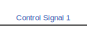
[diagram: root canvas - part 1/5, top left region]
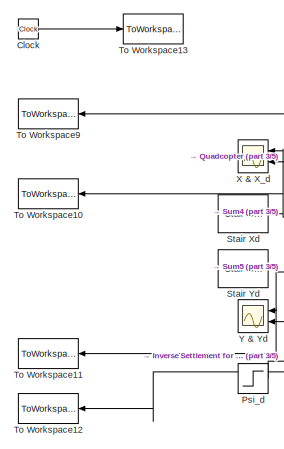
[diagram: root canvas - part 2/5, top left region]
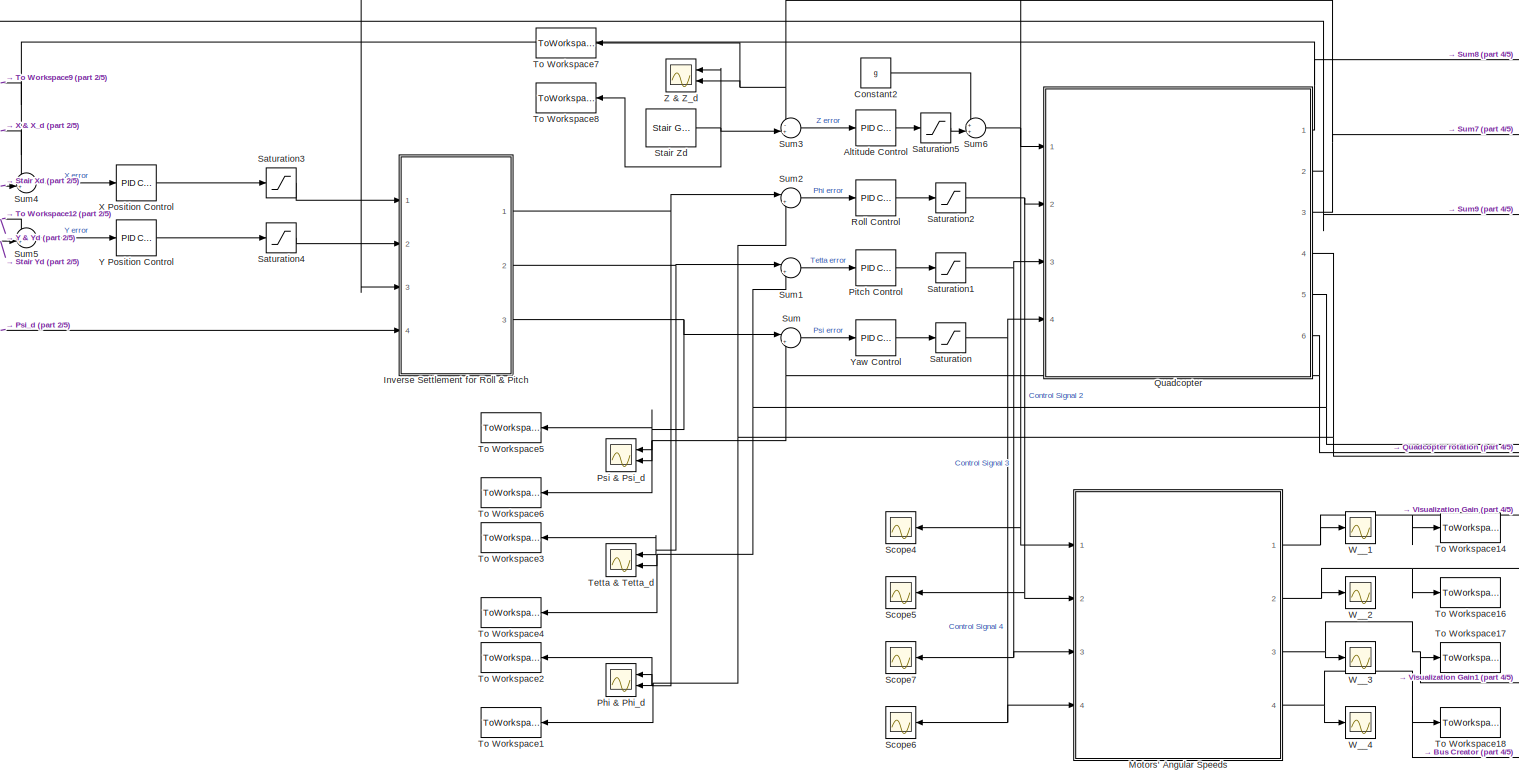
[diagram: root canvas - part 3/5, central region]
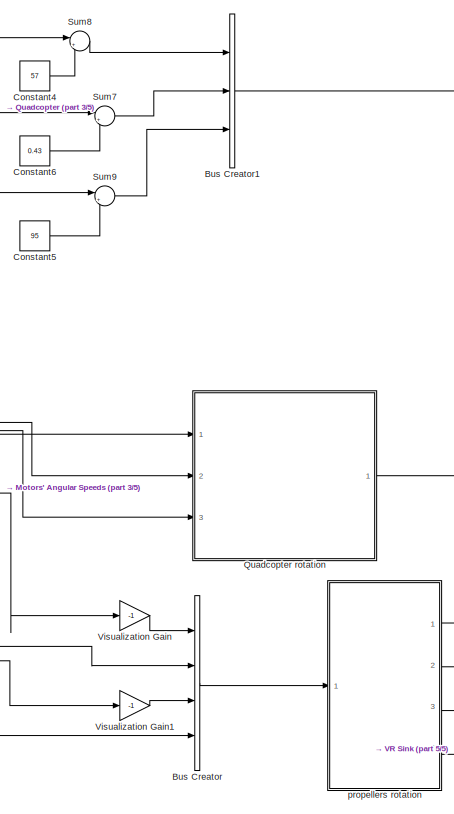
[diagram: root canvas - part 4/5, middle right region]
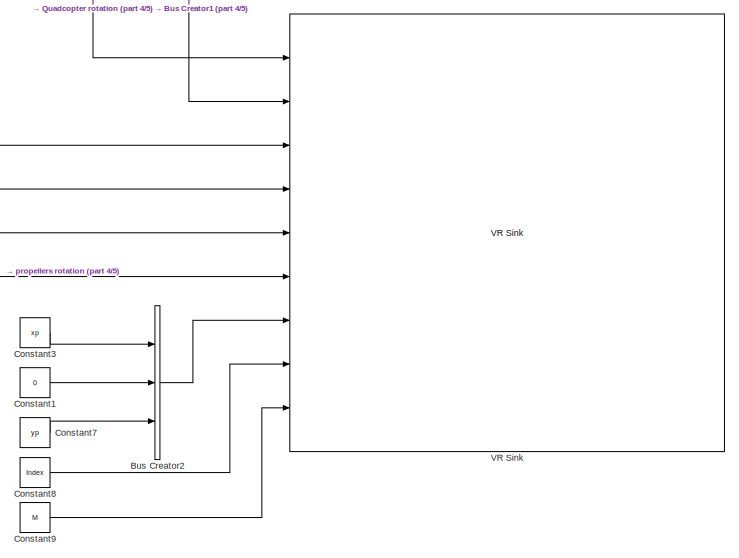
[diagram: root canvas - part 5/5, bottom right region]
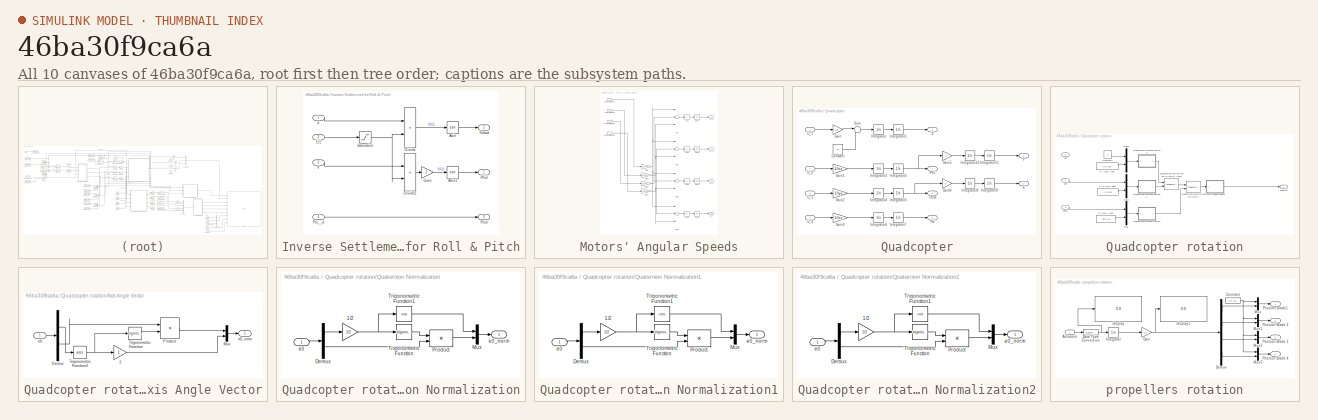
[diagram: thumbnail index - all 10 canvases of the model, root first then tree order]
MODEL slx_46ba30f9ca6a
KIND model
CONFIG AbsTol = auto
CONFIG EnableMultiTasking = off
CONFIG FixedStep = auto
CONFIG MaxStep = auto
CONFIG MinStep = auto
CONFIG RelTol = 1e-3
CONFIG SampleTimeConstraint = Unconstrained
CONFIG Solver = ode15s
CONFIG SolverName = ode15s
CONFIG StartTime = 0.0
CONFIG StopTime = Final_Time_1
BLOCK [Reference] Altitude Control   REF=simulink/Continuous/PID Controller
  Ports = [1, 1]
  SourceBlock = simulink/Continuous/PID Controller
  SourceProductBaseCode = SL
  SourceProductName = Simulink
  SourceType = PID 1dof
BLOCK [BusCreator] Bus Creator
  DisplayOption = bar
  InheritFromInputs = on
  Inputs = 4
  Ports = [4, 1]
BLOCK [BusCreator] Bus Creator1
  DisplayOption = bar
  InheritFromInputs = on
  Inputs = 3
  Ports = [3, 1]
BLOCK [BusCreator] Bus Creator2
  DisplayOption = bar
  InheritFromInputs = on
  Inputs = 3
  Ports = [3, 1]
BLOCK [Clock] Clock
BLOCK [Constant] Constant1
  Value = 0
BLOCK [Constant] Constant2
  Value = g
BLOCK [Constant] Constant3
  Value = xp
BLOCK [Constant] Constant4
  Value = 57
BLOCK [Constant] Constant5
  Value = 95
BLOCK [Constant] Constant6
  Value = 0.43
BLOCK [Constant] Constant7
  Value = yp
BLOCK [Constant] Constant8
  Value = Index
  VectorParams1D = off
BLOCK [Constant] Constant9
  Value = M
BLOCK [SubSystem] Inverse Settlement for Roll & Pitch
  Ports = [4, 3]
  RequestExecContextInheritance = off
BLOCK [Trigonometry] Inverse Settlement for Roll & Pitch/Asin
  Operator = asin
  Ports = [1, 1]
BLOCK [Trigonometry] Inverse Settlement for Roll & Pitch/Asin1
  Operator = asin
  Ports = [1, 1]
BLOCK [Product] Inverse Settlement for Roll & Pitch/Divide
  InputSameDT = off
  Inputs = */
  OutDataTypeStr = Inherit: Inherit via internal rule
  Ports = [2, 1]
  RndMeth = Floor
  SaturateOnIntegerOverflow = off
BLOCK [Product] Inverse Settlement for Roll & Pitch/Divide1
  InputSameDT = off
  Inputs = */
  OutDataTypeStr = Inherit: Inherit via internal rule
  Ports = [2, 1]
  RndMeth = Floor
  SaturateOnIntegerOverflow = off
BLOCK [Gain] Inverse Settlement for Roll & Pitch/Gain
  Gain = -1
  OutDataTypeStr = Inherit: Inherit via internal rule
  ParamDataTypeStr = Inherit: Inherit via internal rule
  SaturateOnIntegerOverflow = off
BLOCK [Outport] Inverse Settlement for Roll & Pitch/Phid 
  IconDisplay = Port number
BLOCK [Inport] Inverse Settlement for Roll & Pitch/Psi__d
  IconDisplay = Port number
  Port = 4
BLOCK [Outport] Inverse Settlement for Roll & Pitch/Psid 
  IconDisplay = Port number
  Port = 3
BLOCK [Saturate] Inverse Settlement for Roll & Pitch/Saturation
  InputPortMap = u0
  LowerLimit = 0.01
  OutMax = [u1_max]
  OutMin = [0.01]
  Ports = [1, 1]
  UpperLimit = u1_max
BLOCK [Outport] Inverse Settlement for Roll & Pitch/Tettad
  IconDisplay = Port number
  Port = 2
BLOCK [Inport] Inverse Settlement for Roll & Pitch/U1
  IconDisplay = Port number
  Port = 3
BLOCK [Inport] Inverse Settlement for Roll & Pitch/X
  IconDisplay = Port number
BLOCK [Inport] Inverse Settlement for Roll & Pitch/Y
  IconDisplay = Port number
  Port = 2
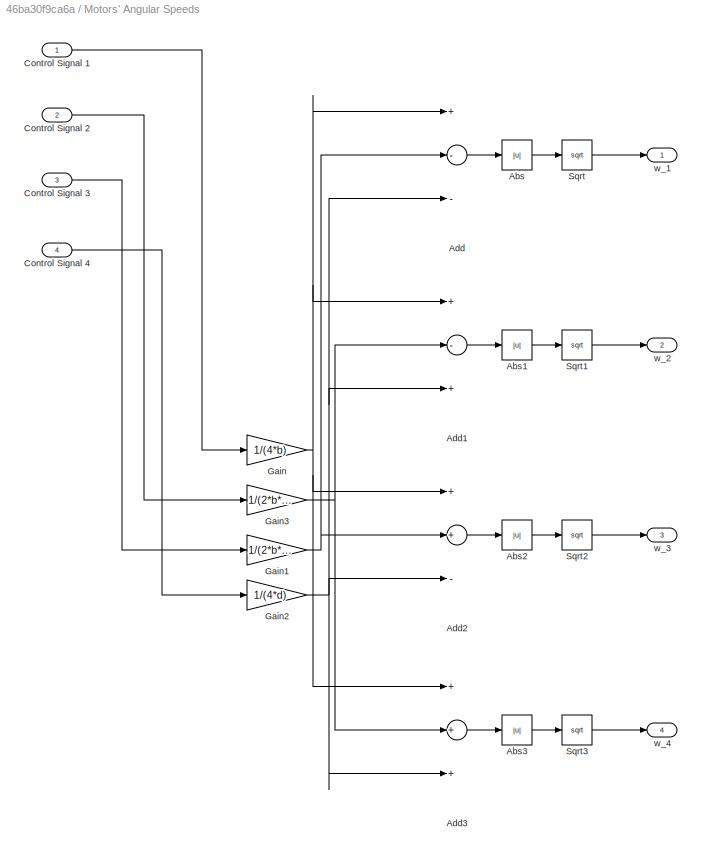
BLOCK [SubSystem] Motors' Angular Speeds
  Ports = [4, 4]
  RequestExecContextInheritance = off
BLOCK [Abs] Motors' Angular Speeds/Abs
  SaturateOnIntegerOverflow = off
BLOCK [Abs] Motors' Angular Speeds/Abs1
  SaturateOnIntegerOverflow = off
BLOCK [Abs] Motors' Angular Speeds/Abs2
  SaturateOnIntegerOverflow = off
BLOCK [Abs] Motors' Angular Speeds/Abs3
  SaturateOnIntegerOverflow = off
BLOCK [Sum] Motors' Angular Speeds/Add
  InputSameDT = off
  Inputs = +--
  OutDataTypeStr = Inherit: Inherit via internal rule
  Ports = [3, 1]
  SaturateOnIntegerOverflow = off
BLOCK [Sum] Motors' Angular Speeds/Add1
  InputSameDT = off
  Inputs = +-+
  OutDataTypeStr = Inherit: Inherit via internal rule
  Ports = [3, 1]
  SaturateOnIntegerOverflow = off
BLOCK [Sum] Motors' Angular Speeds/Add2
  InputSameDT = off
  Inputs = ++-
  OutDataTypeStr = Inherit: Inherit via internal rule
  Ports = [3, 1]
  SaturateOnIntegerOverflow = off
BLOCK [Sum] Motors' Angular Speeds/Add3
  InputSameDT = off
  Inputs = +++
  OutDataTypeStr = Inherit: Inherit via internal rule
  Ports = [3, 1]
  SaturateOnIntegerOverflow = off
BLOCK [Inport] Motors' Angular Speeds/Control Signal 1
  IconDisplay = Port number
BLOCK [Inport] Motors' Angular Speeds/Control Signal 2
  IconDisplay = Port number
  Port = 2
BLOCK [Inport] Motors' Angular Speeds/Control Signal 3
  IconDisplay = Port number
  Port = 3
BLOCK [Inport] Motors' Angular Speeds/Control Signal 4
  IconDisplay = Port number
  Port = 4
BLOCK [Gain] Motors' Angular Speeds/Gain
  Gain = 1/(4*b)
  OutDataTypeStr = Inherit: Inherit via internal rule
  ParamDataTypeStr = Inherit: Inherit via internal rule
  SaturateOnIntegerOverflow = off
BLOCK [Gain] Motors' Angular Speeds/Gain1
  Gain = 1/(2*b*l)
  OutDataTypeStr = Inherit: Inherit via internal rule
  ParamDataTypeStr = Inherit: Inherit via internal rule
  SaturateOnIntegerOverflow = off
BLOCK [Gain] Motors' Angular Speeds/Gain2
  Gain = 1/(4*d)
  OutDataTypeStr = Inherit: Inherit via internal rule
  ParamDataTypeStr = Inherit: Inherit via internal rule
  SaturateOnIntegerOverflow = off
BLOCK [Gain] Motors' Angular Speeds/Gain3
  Gain = 1/(2*b*l)
  OutDataTypeStr = Inherit: Inherit via internal rule
  ParamDataTypeStr = Inherit: Inherit via internal rule
  SaturateOnIntegerOverflow = off
BLOCK [Sqrt] Motors' Angular Speeds/Sqrt
BLOCK [Sqrt] Motors' Angular Speeds/Sqrt1
BLOCK [Sqrt] Motors' Angular Speeds/Sqrt2
BLOCK [Sqrt] Motors' Angular Speeds/Sqrt3
BLOCK [Outport] Motors' Angular Speeds/w_1
  IconDisplay = Port number
BLOCK [Outport] Motors' Angular Speeds/w_2
  IconDisplay = Port number
  Port = 2
BLOCK [Outport] Motors' Angular Speeds/w_3
  IconDisplay = Port number
  Port = 3
BLOCK [Outport] Motors' Angular Speeds/w_4
  IconDisplay = Port number
  Port = 4
BLOCK [Scope] Phi & Phi_d 
  Floating = off
  NumInputPorts = 2
  Ports = [2]
  ScopeSpecificationString = Simulink.scopes.TimeScopeBlockCfg('CurrentConfiguration', extmgr.ConfigurationSet(extmgr.Configuration('Core','General UI',true),extmgr.Configuration('Core','Source UI',true),extmgr.Configuration('Sources','WiredSimulink',true,'DataLoggingVariableName','ScopeData2'),extmgr.Configuration('Visuals','Time Domain',true,'SerializedDisplays',{struct('MinYLimReal','-0.34984','MaxYLimReal','0.34984','YLab...<+1510ch>
BLOCK [Reference] Pitch Control  REF=simulink/Continuous/PID Controller
  Ports = [1, 1]
  SourceBlock = simulink/Continuous/PID Controller
  SourceProductBaseCode = SL
  SourceProductName = Simulink
  SourceType = PID 1dof
BLOCK [Scope] Psi & Psi_d
  Floating = off
  NumInputPorts = 2
  Ports = [2]
  ScopeSpecificationString = Simulink.scopes.TimeScopeBlockCfg('CurrentConfiguration', extmgr.ConfigurationSet(extmgr.Configuration('Core','General UI',true),extmgr.Configuration('Core','Source UI',true),extmgr.Configuration('Sources','WiredSimulink',true),extmgr.Configuration('Visuals','Time Domain',true,'SerializedDisplays',{struct('MinYLimReal','-1.46238','MaxYLimReal','13.16143','YLabelReal','','MinYLimMag','0.00000','Max...<+1475ch>
BLOCK [Step] Psi_d
  After = Psi_d
  SampleTime = 0
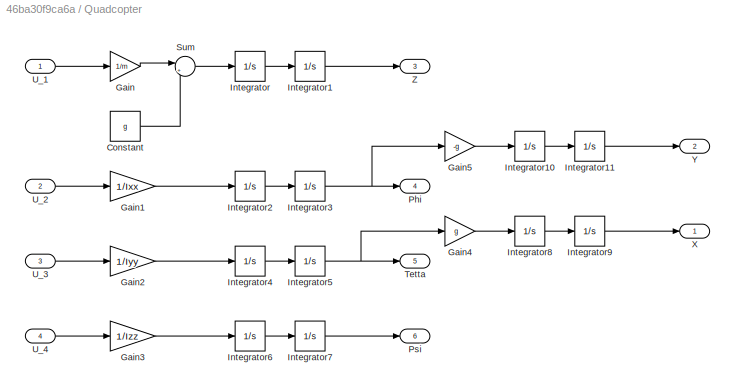
BLOCK [SubSystem] Quadcopter
  Ports = [4, 6]
  RequestExecContextInheritance = off
BLOCK [SubSystem] Quadcopter rotation
  Ports = [3, 1]
  RequestExecContextInheritance = off
BLOCK [SubSystem] Quadcopter rotation/Axis Angle Vector
  Ports = [1, 1]
  RequestExecContextInheritance = off
BLOCK [Gain] Quadcopter rotation/Axis Angle Vector/2
  Gain = 2
BLOCK [Demux] Quadcopter rotation/Axis Angle Vector/Demux
  Outputs = [1 3 ]
  Ports = [1, 2]
BLOCK [Mux] Quadcopter rotation/Axis Angle Vector/Mux
  DisplayOption = bar
  Inputs = 2
  Ports = [2, 1]
BLOCK [Product] Quadcopter rotation/Axis Angle Vector/Product
  Inputs = */
  Ports = [2, 1]
  RndMeth = Floor
BLOCK [Trigonometry] Quadcopter rotation/Axis Angle Vector/Trigonometric Function
  Ports = [1, 1]
BLOCK [Trigonometry] Quadcopter rotation/Axis Angle Vector/Trigonometric Function2
  Operator = acos
  Ports = [1, 1]
BLOCK [Inport] Quadcopter rotation/Axis Angle Vector/e0
  IconDisplay = Port number
BLOCK [Outport] Quadcopter rotation/Axis Angle Vector/e0_norm
  IconDisplay = Port number
BLOCK [Constant] Quadcopter rotation/Constant7
  Value = 0
BLOCK [Mux] Quadcopter rotation/Mux
  DisplayOption = bar
  Inputs = 2
  Ports = [2, 1]
BLOCK [Mux] Quadcopter rotation/Mux2
  DisplayOption = bar
  Inputs = 2
  Ports = [2, 1]
BLOCK [Mux] Quadcopter rotation/Mux3
  DisplayOption = bar
  Inputs = 2
  Ports = [2, 1]
BLOCK [Reference] Quadcopter rotation/Quaternion Multiplication (Pitch & Yaw)  REF=aerolibutil/Quaternion
Multiplication
  Ports = [2, 1]
  SourceBlock = aerolibutil/Quaternion\nMultiplication
  SourceProductBaseCode = AE
  SourceProductName = Aerospace Blockset
  SourceType = Quaternion Multiplication
BLOCK [Reference] Quadcopter rotation/Quaternion Multiplication (Roll)  REF=aerolibutil/Quaternion
Multiplication
  Ports = [2, 1]
  SourceBlock = aerolibutil/Quaternion\nMultiplication
  SourceProductBaseCode = AE
  SourceProductName = Aerospace Blockset
  SourceType = Quaternion Multiplication
BLOCK [SubSystem] Quadcopter rotation/Quaternion Normalization
  Ports = [1, 1]
  RequestExecContextInheritance = off
BLOCK [Gain] Quadcopter rotation/Quaternion Normalization/1//2
  Gain = 1/2
BLOCK [Demux] Quadcopter rotation/Quaternion Normalization/Demux
  Outputs = [1 3]
  Ports = [1, 2]
BLOCK [Mux] Quadcopter rotation/Quaternion Normalization/Mux
  DisplayOption = bar
  Inputs = 2
  Ports = [2, 1]
BLOCK [Product] Quadcopter rotation/Quaternion Normalization/Product
  Ports = [2, 1]
  RndMeth = Floor
BLOCK [Trigonometry] Quadcopter rotation/Quaternion Normalization/Trigonometric Function
  Ports = [1, 1]
BLOCK [Trigonometry] Quadcopter rotation/Quaternion Normalization/Trigonometric Function1
  Operator = cos
  Ports = [1, 1]
BLOCK [Inport] Quadcopter rotation/Quaternion Normalization/e0
  IconDisplay = Port number
BLOCK [Outport] Quadcopter rotation/Quaternion Normalization/e0_norm
  IconDisplay = Port number
BLOCK [SubSystem] Quadcopter rotation/Quaternion Normalization1
  Ports = [1, 1]
  RequestExecContextInheritance = off
BLOCK [Gain] Quadcopter rotation/Quaternion Normalization1/1//2
  Gain = 1/2
BLOCK [Demux] Quadcopter rotation/Quaternion Normalization1/Demux
  Outputs = [1 3]
  Ports = [1, 2]
BLOCK [Mux] Quadcopter rotation/Quaternion Normalization1/Mux
  DisplayOption = bar
  Inputs = 2
  Ports = [2, 1]
BLOCK [Product] Quadcopter rotation/Quaternion Normalization1/Product
  Ports = [2, 1]
  RndMeth = Floor
BLOCK [Trigonometry] Quadcopter rotation/Quaternion Normalization1/Trigonometric Function
  Ports = [1, 1]
BLOCK [Trigonometry] Quadcopter rotation/Quaternion Normalization1/Trigonometric Function1
  Operator = cos
  Ports = [1, 1]
BLOCK [Inport] Quadcopter rotation/Quaternion Normalization1/e0
  IconDisplay = Port number
BLOCK [Outport] Quadcopter rotation/Quaternion Normalization1/e0_norm
  IconDisplay = Port number
BLOCK [SubSystem] Quadcopter rotation/Quaternion Normalization2
  Ports = [1, 1]
  RequestExecContextInheritance = off
BLOCK [Gain] Quadcopter rotation/Quaternion Normalization2/1//2
  Gain = 1/2
BLOCK [Demux] Quadcopter rotation/Quaternion Normalization2/Demux
  Outputs = [1 3]
  Ports = [1, 2]
BLOCK [Mux] Quadcopter rotation/Quaternion Normalization2/Mux
  DisplayOption = bar
  Inputs = 2
  Ports = [2, 1]
BLOCK [Product] Quadcopter rotation/Quaternion Normalization2/Product
  Ports = [2, 1]
  RndMeth = Floor
BLOCK [Trigonometry] Quadcopter rotation/Quaternion Normalization2/Trigonometric Function
  Ports = [1, 1]
BLOCK [Trigonometry] Quadcopter rotation/Quaternion Normalization2/Trigonometric Function1
  Operator = cos
  Ports = [1, 1]
BLOCK [Inport] Quadcopter rotation/Quaternion Normalization2/e0
  IconDisplay = Port number
BLOCK [Outport] Quadcopter rotation/Quaternion Normalization2/e0_norm
  IconDisplay = Port number
BLOCK [Constant] Quadcopter rotation/Vr Pitch Axes1
  Value = [-1 0 0]
BLOCK [Constant] Quadcopter rotation/Vr Roll Axes
  Value = [0 0 -1]
BLOCK [Constant] Quadcopter rotation/Vr Yaw Axes
  Value = [0 -1 0]
BLOCK [Inport] Quadcopter rotation/phi
  IconDisplay = Port number
BLOCK [Inport] Quadcopter rotation/psi
  IconDisplay = Port number
  Port = 3
BLOCK [Outport] Quadcopter rotation/quad_rot
  IconDisplay = Port number
BLOCK [Inport] Quadcopter rotation/theta
  IconDisplay = Port number
  Port = 2
BLOCK [Constant] Quadcopter/Constant
  Value = g
BLOCK [Gain] Quadcopter/Gain
  Gain = 1/m
  OutDataTypeStr = Inherit: Inherit via internal rule
  ParamDataTypeStr = Inherit: Inherit via internal rule
  SaturateOnIntegerOverflow = off
BLOCK [Gain] Quadcopter/Gain1
  Gain = 1/Ixx
  OutDataTypeStr = Inherit: Inherit via internal rule
  ParamDataTypeStr = Inherit: Inherit via internal rule
  SaturateOnIntegerOverflow = off
BLOCK [Gain] Quadcopter/Gain2
  Gain = 1/Iyy
  OutDataTypeStr = Inherit: Inherit via internal rule
  ParamDataTypeStr = Inherit: Inherit via internal rule
  SaturateOnIntegerOverflow = off
BLOCK [Gain] Quadcopter/Gain3
  Gain = 1/Izz
  OutDataTypeStr = Inherit: Inherit via internal rule
  ParamDataTypeStr = Inherit: Inherit via internal rule
  SaturateOnIntegerOverflow = off
BLOCK [Gain] Quadcopter/Gain4
  Gain = g
  OutDataTypeStr = Inherit: Inherit via internal rule
  ParamDataTypeStr = Inherit: Inherit via internal rule
  SaturateOnIntegerOverflow = off
BLOCK [Gain] Quadcopter/Gain5
  Gain = -g
  OutDataTypeStr = Inherit: Inherit via internal rule
  ParamDataTypeStr = Inherit: Inherit via internal rule
  SaturateOnIntegerOverflow = off
BLOCK [Integrator] Quadcopter/Integrator
  Ports = [1, 1]
BLOCK [Integrator] Quadcopter/Integrator1
  Ports = [1, 1]
BLOCK [Integrator] Quadcopter/Integrator10
  Ports = [1, 1]
BLOCK [Integrator] Quadcopter/Integrator11
  Ports = [1, 1]
BLOCK [Integrator] Quadcopter/Integrator2
  Ports = [1, 1]
BLOCK [Integrator] Quadcopter/Integrator3
  Ports = [1, 1]
BLOCK [Integrator] Quadcopter/Integrator4
  Ports = [1, 1]
BLOCK [Integrator] Quadcopter/Integrator5
  Ports = [1, 1]
BLOCK [Integrator] Quadcopter/Integrator6
  Ports = [1, 1]
BLOCK [Integrator] Quadcopter/Integrator7
  Ports = [1, 1]
BLOCK [Integrator] Quadcopter/Integrator8
  Ports = [1, 1]
BLOCK [Integrator] Quadcopter/Integrator9
  Ports = [1, 1]
BLOCK [Outport] Quadcopter/Phi
  IconDisplay = Port number
  Port = 4
BLOCK [Outport] Quadcopter/Psi
  IconDisplay = Port number
  Port = 6
BLOCK [Sum] Quadcopter/Sum
  IconShape = round
  InputSameDT = off
  Inputs = |+-
  OutDataTypeStr = Inherit: Inherit via internal rule
  Ports = [2, 1]
  SaturateOnIntegerOverflow = off
BLOCK [Outport] Quadcopter/Tetta
  IconDisplay = Port number
  Port = 5
BLOCK [Inport] Quadcopter/U_1
  IconDisplay = Port number
BLOCK [Inport] Quadcopter/U_2
  IconDisplay = Port number
  Port = 2
BLOCK [Inport] Quadcopter/U_3
  IconDisplay = Port number
  Port = 3
BLOCK [Inport] Quadcopter/U_4
  IconDisplay = Port number
  Port = 4
BLOCK [Outport] Quadcopter/X
  IconDisplay = Port number
BLOCK [Outport] Quadcopter/Y
  IconDisplay = Port number
  Port = 2
BLOCK [Outport] Quadcopter/Z
  IconDisplay = Port number
  Port = 3
BLOCK [Reference] Roll Control  REF=simulink/Continuous/PID Controller
  Ports = [1, 1]
  SourceBlock = simulink/Continuous/PID Controller
  SourceProductBaseCode = SL
  SourceProductName = Simulink
  SourceType = PID 1dof
BLOCK [Saturate] Saturation
  InputPortMap = u0
  LowerLimit = u4_min
  Ports = [1, 1]
  UpperLimit = u4_max
BLOCK [Saturate] Saturation1
  InputPortMap = u0
  LowerLimit = u3_min
  Ports = [1, 1]
  UpperLimit = u3_max
BLOCK [Saturate] Saturation2
  InputPortMap = u0
  LowerLimit = u2_min
  Ports = [1, 1]
  UpperLimit = u2_max
BLOCK [Saturate] Saturation3
  InputPortMap = u0
  LowerLimit = -3*g
  Ports = [1, 1]
  UpperLimit = 3*g
BLOCK [Saturate] Saturation4
  InputPortMap = u0
  LowerLimit = -3*g
  Ports = [1, 1]
  UpperLimit = 3*g
BLOCK [Saturate] Saturation5
  InputPortMap = u0
  LowerLimit = u1_min
  Ports = [1, 1]
  UpperLimit = u1_max
BLOCK [Scope] Scope4
  Floating = off
  NumInputPorts = 1
  Ports = [1]
  ScopeSpecificationString = Simulink.scopes.TimeScopeBlockCfg('CurrentConfiguration', extmgr.ConfigurationSet(extmgr.Configuration('Core','General UI',true),extmgr.Configuration('Core','Source UI',true),extmgr.Configuration('Sources','WiredSimulink',true,'DataLoggingVariableName','ScopeData1'),extmgr.Configuration('Visuals','Time Domain',true,'SerializedDisplays',{struct('MinYLimReal','86.72924','MaxYLimReal','106.72924','YL...<+1457ch>
BLOCK [Scope] Scope5
  Floating = off
  NumInputPorts = 1
  Ports = [1]
  ScopeSpecificationString = Simulink.scopes.TimeScopeBlockCfg('CurrentConfiguration', extmgr.ConfigurationSet(extmgr.Configuration('Core','General UI',true),extmgr.Configuration('Core','Source UI',true),extmgr.Configuration('Sources','WiredSimulink',true,'DataLoggingVariableName','ScopeData2'),extmgr.Configuration('Visuals','Time Domain',true,'SerializedDisplays',{struct('MinYLimReal','-88.75166','MaxYLimReal','88.75166','YL...<+1453ch>
BLOCK [Scope] Scope6
  Floating = off
  NumInputPorts = 1
  Ports = [1]
  ScopeSpecificationString = Simulink.scopes.TimeScopeBlockCfg('CurrentConfiguration', extmgr.ConfigurationSet(extmgr.Configuration('Core','General UI',true),extmgr.Configuration('Core','Source UI',true),extmgr.Configuration('Sources','WiredSimulink',true,'DataLoggingVariableName','ScopeData3'),extmgr.Configuration('Visuals','Time Domain',true,'SerializedDisplays',{struct('MinYLimReal','-3.82952','MaxYLimReal','3.82952','YLab...<+1376ch>
BLOCK [Scope] Scope7
  Floating = off
  NumInputPorts = 1
  Ports = [1]
  ScopeSpecificationString = Simulink.scopes.TimeScopeBlockCfg('CurrentConfiguration', extmgr.ConfigurationSet(extmgr.Configuration('Core','General UI',true),extmgr.Configuration('Core','Source UI',true),extmgr.Configuration('Sources','WiredSimulink',true,'DataLoggingVariableName','ScopeData4'),extmgr.Configuration('Visuals','Time Domain',true,'SerializedDisplays',{struct('MinYLimReal','-27.38258','MaxYLimReal','27.38258','YL...<+1428ch>
BLOCK [Reference] Stair Xd  REF=powerlib_meascontrol/Pulse & Signal
Generators/Stair
Generator
  Ports = [0, 1]
  SourceBlock = powerlib_meascontrol/Pulse & Signal\nGenerators/Stair\nGenerator
  SourceProductBaseCode = PS
  SourceProductName = Simscape Power Systems
  SourceType = Stair Generator
BLOCK [Reference] Stair Yd  REF=powerlib_meascontrol/Pulse & Signal
Generators/Stair
Generator
  Ports = [0, 1]
  SourceBlock = powerlib_meascontrol/Pulse & Signal\nGenerators/Stair\nGenerator
  SourceProductBaseCode = PS
  SourceProductName = Simscape Power Systems
  SourceType = Stair Generator
BLOCK [Reference] Stair Zd  REF=powerlib_meascontrol/Pulse & Signal
Generators/Stair
Generator
  Ports = [0, 1]
  SourceBlock = powerlib_meascontrol/Pulse & Signal\nGenerators/Stair\nGenerator
  SourceProductBaseCode = PS
  SourceProductName = Simscape Power Systems
  SourceType = Stair Generator
BLOCK [Sum] Sum
  IconShape = round
  InputSameDT = off
  Inputs = |+-
  OutDataTypeStr = Inherit: Inherit via internal rule
  Ports = [2, 1]
  SaturateOnIntegerOverflow = off
BLOCK [Sum] Sum1
  IconShape = round
  InputSameDT = off
  Inputs = |+-
  OutDataTypeStr = Inherit: Inherit via internal rule
  Ports = [2, 1]
  SaturateOnIntegerOverflow = off
BLOCK [Sum] Sum2
  IconShape = round
  InputSameDT = off
  Inputs = |+-
  OutDataTypeStr = Inherit: Inherit via internal rule
  Ports = [2, 1]
  SaturateOnIntegerOverflow = off
BLOCK [Sum] Sum3
  IconShape = round
  InputSameDT = off
  Inputs = -+|
  OutDataTypeStr = Inherit: Inherit via internal rule
  Ports = [2, 1]
  SaturateOnIntegerOverflow = off
BLOCK [Sum] Sum4
  IconShape = round
  InputSameDT = off
  Inputs = -+|
  OutDataTypeStr = Inherit: Inherit via internal rule
  Ports = [2, 1]
  SaturateOnIntegerOverflow = off
BLOCK [Sum] Sum5
  IconShape = round
  InputSameDT = off
  Inputs = -+|
  OutDataTypeStr = Inherit: Inherit via internal rule
  Ports = [2, 1]
  SaturateOnIntegerOverflow = off
BLOCK [Sum] Sum6
  IconShape = round
  InputSameDT = off
  Inputs = ++|
  OutDataTypeStr = Inherit: Inherit via internal rule
  Ports = [2, 1]
  SaturateOnIntegerOverflow = off
BLOCK [Sum] Sum7
  IconShape = round
  InputSameDT = off
  Inputs = |++
  OutDataTypeStr = Inherit: Inherit via internal rule
  Ports = [2, 1]
  SaturateOnIntegerOverflow = off
BLOCK [Sum] Sum8
  IconShape = round
  InputSameDT = off
  Inputs = |++
  OutDataTypeStr = Inherit: Inherit via internal rule
  Ports = [2, 1]
  SaturateOnIntegerOverflow = off
BLOCK [Sum] Sum9
  IconShape = round
  InputSameDT = off
  Inputs = |++
  OutDataTypeStr = Inherit: Inherit via internal rule
  Ports = [2, 1]
  SaturateOnIntegerOverflow = off
BLOCK [Scope] Tetta & Tetta_d 
  Floating = off
  NumInputPorts = 2
  Ports = [2]
  ScopeSpecificationString = Simulink.scopes.TimeScopeBlockCfg('CurrentConfiguration', extmgr.ConfigurationSet(extmgr.Configuration('Core','General UI',true),extmgr.Configuration('Core','Source UI',true),extmgr.Configuration('Sources','WiredSimulink',true,'DataLoggingVariableName','ScopeData1'),extmgr.Configuration('Visuals','Time Domain',true,'SerializedDisplays',{struct('MinYLimReal','-0.35448','MaxYLimReal','0.39155','YLab...<+1511ch>
BLOCK [ToWorkspace] To Workspace1
  FixptAsFi = on
  MaxDataPoints = inf
  Ports = [1]
  SampleTime = -1
  Save2DSignal = 2-D array (concatenate along first dimension)
  VariableName = phi_CL
BLOCK [ToWorkspace] To Workspace10
  FixptAsFi = on
  MaxDataPoints = inf
  Ports = [1]
  SampleTime = -1
  Save2DSignal = 2-D array (concatenate along first dimension)
  VariableName = X_ref_CL
BLOCK [ToWorkspace] To Workspace11
  FixptAsFi = on
  MaxDataPoints = inf
  Ports = [1]
  SampleTime = -1
  Save2DSignal = 2-D array (concatenate along first dimension)
  VariableName = Y_ref_CL
BLOCK [ToWorkspace] To Workspace12
  FixptAsFi = on
  MaxDataPoints = inf
  Ports = [1]
  SampleTime = -1
  Save2DSignal = 2-D array (concatenate along first dimension)
  VariableName = Y_CL
BLOCK [ToWorkspace] To Workspace13
  FixptAsFi = on
  MaxDataPoints = inf
  Ports = [1]
  SampleTime = -1
  Save2DSignal = 2-D array (concatenate along first dimension)
  VariableName = t_CL
BLOCK [ToWorkspace] To Workspace14
  FixptAsFi = on
  MaxDataPoints = inf
  Ports = [1]
  SampleTime = -1
  Save2DSignal = 2-D array (concatenate along first dimension)
  VariableName = W_1
BLOCK [ToWorkspace] To Workspace16
  FixptAsFi = on
  MaxDataPoints = inf
  Ports = [1]
  SampleTime = -1
  Save2DSignal = 2-D array (concatenate along first dimension)
  VariableName = W_2
BLOCK [ToWorkspace] To Workspace17
  FixptAsFi = on
  MaxDataPoints = inf
  Ports = [1]
  SampleTime = -1
  Save2DSignal = 2-D array (concatenate along first dimension)
  VariableName = W_3
BLOCK [ToWorkspace] To Workspace18
  FixptAsFi = on
  MaxDataPoints = inf
  Ports = [1]
  SampleTime = -1
  Save2DSignal = 2-D array (concatenate along first dimension)
  VariableName = W_4
BLOCK [ToWorkspace] To Workspace2
  FixptAsFi = on
  MaxDataPoints = inf
  Ports = [1]
  SampleTime = -1
  Save2DSignal = 2-D array (concatenate along first dimension)
  VariableName = phi_ref_CL
BLOCK [ToWorkspace] To Workspace3
  FixptAsFi = on
  MaxDataPoints = inf
  Ports = [1]
  SampleTime = -1
  Save2DSignal = 2-D array (concatenate along first dimension)
  VariableName = tetta_ref_CL
BLOCK [ToWorkspace] To Workspace4
  FixptAsFi = on
  MaxDataPoints = inf
  Ports = [1]
  SampleTime = -1
  Save2DSignal = 2-D array (concatenate along first dimension)
  VariableName = tetta_CL
BLOCK [ToWorkspace] To Workspace5
  FixptAsFi = on
  MaxDataPoints = inf
  Ports = [1]
  SampleTime = -1
  Save2DSignal = 2-D array (concatenate along first dimension)
  VariableName = psi_ref_CL
BLOCK [ToWorkspace] To Workspace6
  FixptAsFi = on
  MaxDataPoints = inf
  Ports = [1]
  SampleTime = -1
  Save2DSignal = 2-D array (concatenate along first dimension)
  VariableName = psi_CL
BLOCK [ToWorkspace] To Workspace7
  FixptAsFi = on
  MaxDataPoints = inf
  Ports = [1]
  SampleTime = -1
  Save2DSignal = 2-D array (concatenate along first dimension)
  VariableName = Z_CL
BLOCK [ToWorkspace] To Workspace8
  FixptAsFi = on
  MaxDataPoints = inf
  Ports = [1]
  SampleTime = -1
  Save2DSignal = 2-D array (concatenate along first dimension)
  VariableName = Z_ref_CL
BLOCK [ToWorkspace] To Workspace9
  FixptAsFi = on
  MaxDataPoints = inf
  Ports = [1]
  SampleTime = -1
  Save2DSignal = 2-D array (concatenate along first dimension)
  VariableName = X_CL
BLOCK [Reference] VR Sink  REF=vrlib/VR Sink
  InstantiateOnLoad = on
  Ports = [9]
  SourceBlock = vrlib/VR Sink
  SourceProductBaseCode = VR
  SourceProductName = Simulink 3D Animation
  SourceType = Virtual Reality Sink
BLOCK [Gain] Visualization Gain
  Gain = -1
  OutDataTypeStr = Inherit: Inherit via internal rule
  ParamDataTypeStr = Inherit: Inherit via internal rule
  SaturateOnIntegerOverflow = off
BLOCK [Gain] Visualization Gain1
  Gain = -1
  OutDataTypeStr = Inherit: Inherit via internal rule
  ParamDataTypeStr = Inherit: Inherit via internal rule
  SaturateOnIntegerOverflow = off
BLOCK [Scope] W__1
  Floating = off
  NumInputPorts = 1
  Ports = [1]
  ScopeSpecificationString = Simulink.scopes.TimeScopeBlockCfg('CurrentConfiguration', extmgr.ConfigurationSet(extmgr.Configuration('Core','General UI',true),extmgr.Configuration('Core','Source UI',true),extmgr.Configuration('Sources','WiredSimulink',true,'DataLoggingVariableName','ScopeData4'),extmgr.Configuration('Visuals','Time Domain',true,'SerializedDisplays',{struct('MinYLimReal','-77.31187','MaxYLimReal','695.80816','Y...<+1495ch>
BLOCK [Scope] W__2
  Floating = off
  NumInputPorts = 1
  Ports = [1]
  ScopeSpecificationString = Simulink.scopes.TimeScopeBlockCfg('CurrentConfiguration', extmgr.ConfigurationSet(extmgr.Configuration('Core','General UI',true),extmgr.Configuration('Core','Source UI',true),extmgr.Configuration('Sources','WiredSimulink',true,'DataLoggingVariableName','ScopeData5'),extmgr.Configuration('Visuals','Time Domain',true,'SerializedDisplays',{struct('MinYLimReal','-77.31183','MaxYLimReal','695.80816','Y...<+1465ch>
BLOCK [Scope] W__3
  Floating = off
  NumInputPorts = 1
  Ports = [1]
  ScopeSpecificationString = Simulink.scopes.TimeScopeBlockCfg('CurrentConfiguration', extmgr.ConfigurationSet(extmgr.Configuration('Core','General UI',true),extmgr.Configuration('Core','Source UI',true),extmgr.Configuration('Sources','WiredSimulink',true,'DataLoggingVariableName','ScopeData6'),extmgr.Configuration('Visuals','Time Domain',true,'SerializedDisplays',{struct('MinYLimReal','-79.78783','MaxYLimReal','718.09184','Y...<+1440ch>
BLOCK [Scope] W__4
  Floating = off
  NumInputPorts = 1
  Ports = [1]
  ScopeSpecificationString = Simulink.scopes.TimeScopeBlockCfg('CurrentConfiguration', extmgr.ConfigurationSet(extmgr.Configuration('Core','General UI',true),extmgr.Configuration('Core','Source UI',true),extmgr.Configuration('Sources','WiredSimulink',true,'DataLoggingVariableName','ScopeData7'),extmgr.Configuration('Visuals','Time Domain',true,'SerializedDisplays',{struct('MinYLimReal','-87.26838','MaxYLimReal','785.41712','Y...<+1440ch>
BLOCK [Scope] X & X_d
  Floating = off
  NumInputPorts = 2
  Ports = [2]
  ScopeSpecificationString = Simulink.scopes.TimeScopeBlockCfg('CurrentConfiguration', extmgr.ConfigurationSet(extmgr.Configuration('Core','General UI',true),extmgr.Configuration('Core','Source UI',true),extmgr.Configuration('Sources','WiredSimulink',true,'DataLoggingVariableName','ScopeData1'),extmgr.Configuration('Visuals','Time Domain',true,'SerializedDisplays',{struct('MinYLimReal','-62.52492','MaxYLimReal','562.72432','Y...<+1492ch>
BLOCK [Reference] X Position Control  REF=simulink/Continuous/PID Controller
  Ports = [1, 1]
  SourceBlock = simulink/Continuous/PID Controller
  SourceProductBaseCode = SL
  SourceProductName = Simulink
  SourceType = PID 1dof
BLOCK [Scope] Y & Yd
  Floating = off
  NumInputPorts = 2
  Ports = [2]
  ScopeSpecificationString = Simulink.scopes.TimeScopeBlockCfg('CurrentConfiguration', extmgr.ConfigurationSet(extmgr.Configuration('Core','General UI',true),extmgr.Configuration('Core','Source UI',true),extmgr.Configuration('Sources','WiredSimulink',true,'DataLoggingVariableName','ScopeData2'),extmgr.Configuration('Visuals','Time Domain',true,'SerializedDisplays',{struct('MinYLimReal','-62.52514','MaxYLimReal','562.72623','Y...<+1492ch>
BLOCK [Reference] Y Position Control  REF=simulink/Continuous/PID Controller
  Ports = [1, 1]
  SourceBlock = simulink/Continuous/PID Controller
  SourceProductBaseCode = SL
  SourceProductName = Simulink
  SourceType = PID 1dof
BLOCK [Reference] Yaw Control  REF=simulink/Continuous/PID Controller
  Ports = [1, 1]
  SourceBlock = simulink/Continuous/PID Controller
  SourceProductBaseCode = SL
  SourceProductName = Simulink
  SourceType = PID 1dof
BLOCK [Scope] Z & Z_d
  Floating = off
  NumInputPorts = 2
  Ports = [2]
  ScopeSpecificationString = Simulink.scopes.TimeScopeBlockCfg('CurrentConfiguration', extmgr.ConfigurationSet(extmgr.Configuration('Core','General UI',true),extmgr.Configuration('Core','Source UI',true),extmgr.Configuration('Sources','WiredSimulink',true,'DataLoggingVariableName','ScopeData3'),extmgr.Configuration('Visuals','Time Domain',true,'SerializedDisplays',{struct('MinYLimReal','-0.63539','MaxYLimReal','5.71849','YLab...<+1481ch>
BLOCK [SubSystem] propellers rotation
  Ports = [1, 4]
  RequestExecContextInheritance = off
BLOCK [Inport] propellers rotation/Actuators
  IconDisplay = Port number
BLOCK [Constant] propellers rotation/Constant
  Value = [0 1 0]
BLOCK [DataTypeConversion] propellers rotation/Data Type Conversion
  RndMeth = Floor
  SaturateOnIntegerOverflow = off
BLOCK [Demux] propellers rotation/Demux
  DisplayOption = bar
  Ports = [1, 4]
BLOCK [Display] propellers rotation/Display
  Decimation = 1
  Ports = [1]
BLOCK [Display] propellers rotation/Display1
  Decimation = 1
  Ports = [1]
BLOCK [Gain] propellers rotation/Gain
  Gain = 1.1
  OutDataTypeStr = Inherit: Inherit via internal rule
  ParamDataTypeStr = Inherit: Inherit via internal rule
  SaturateOnIntegerOverflow = off
BLOCK [Integrator] propellers rotation/Integrator
  InitialCondition = [0 0 0 0]
  Ports = [1, 1]
  WrappedStateLowerValue = 0
  WrappedStateUpperValue = 2*pi
BLOCK [Mux] propellers rotation/Mux
  DisplayOption = bar
  Inputs = 2
  Ports = [2, 1]
BLOCK [Mux] propellers rotation/Mux1
  DisplayOption = bar
  Inputs = 2
  Ports = [2, 1]
BLOCK [Mux] propellers rotation/Mux2
  DisplayOption = bar
  Inputs = 2
  Ports = [2, 1]
BLOCK [Mux] propellers rotation/Mux3
  DisplayOption = bar
  Inputs = 2
  Ports = [2, 1]
BLOCK [Outport] propellers rotation/Position Blade 2
  IconDisplay = Port number
  Port = 2
BLOCK [Outport] propellers rotation/Position Blade 3
  IconDisplay = Port number
  Port = 3
BLOCK [Outport] propellers rotation/Position Blade 4
  IconDisplay = Port number
  Port = 4
BLOCK [Outport] propellers rotation/Position Blade1
  IconDisplay = Port number
LINE Altitude Control :1 -> Saturation5:1
LINE Bus Creator1:1 -> VR Sink:2
LINE Bus Creator2:1 -> VR Sink:7
LINE Bus Creator:1 -> propellers rotation:1
LINE Clock:1 -> To Workspace13:1
LINE Constant1:1 -> Bus Creator2:2
LINE Constant2:1 -> Sum6:1
LINE Constant3:1 -> Bus Creator2:1
LINE Constant4:1 -> Sum8:2
LINE Constant5:1 -> Sum9:2
LINE Constant6:1 -> Sum7:2
LINE Constant7:1 -> Bus Creator2:3
LINE Constant8:1 -> VR Sink:8
LINE Constant9:1 -> VR Sink:9
LINE Inverse Settlement for Roll & Pitch/Asin1:1 -> Inverse Settlement for Roll & Pitch/Phid :1
LINE Inverse Settlement for Roll & Pitch/Asin:1 -> Inverse Settlement for Roll & Pitch/Tettad:1
LINE Inverse Settlement for Roll & Pitch/Divide1:1 -> Inverse Settlement for Roll & Pitch/Gain:1
LINE Inverse Settlement for Roll & Pitch/Divide:1 -> Inverse Settlement for Roll & Pitch/Asin:1
LINE Inverse Settlement for Roll & Pitch/Gain:1 -> Inverse Settlement for Roll & Pitch/Asin1:1
LINE Inverse Settlement for Roll & Pitch/Psi__d:1 -> Inverse Settlement for Roll & Pitch/Psid :1
NET Inverse Settlement for Roll & Pitch/Saturation:1 -> Inverse Settlement for Roll & Pitch/Divide1:2, Inverse Settlement for Roll & Pitch/Divide:2
LINE Inverse Settlement for Roll & Pitch/U1:1 -> Inverse Settlement for Roll & Pitch/Saturation:1
LINE Inverse Settlement for Roll & Pitch/X:1 -> Inverse Settlement for Roll & Pitch/Divide:1
LINE Inverse Settlement for Roll & Pitch/Y:1 -> Inverse Settlement for Roll & Pitch/Divide1:1
NET Inverse Settlement for Roll & Pitch:1 -> Phi & Phi_d :1, Sum2:1, To Workspace2:1
NET Inverse Settlement for Roll & Pitch:2 -> Sum1:1, Tetta & Tetta_d :1, To Workspace3:1
NET Inverse Settlement for Roll & Pitch:3 -> Psi & Psi_d:1, Sum:1, To Workspace5:1
LINE Motors' Angular Speeds/Abs1:1 -> Motors' Angular Speeds/Sqrt1:1
LINE Motors' Angular Speeds/Abs2:1 -> Motors' Angular Speeds/Sqrt2:1
LINE Motors' Angular Speeds/Abs3:1 -> Motors' Angular Speeds/Sqrt3:1
LINE Motors' Angular Speeds/Abs:1 -> Motors' Angular Speeds/Sqrt:1
LINE Motors' Angular Speeds/Add1:1 -> Motors' Angular Speeds/Abs1:1
LINE Motors' Angular Speeds/Add2:1 -> Motors' Angular Speeds/Abs2:1
LINE Motors' Angular Speeds/Add3:1 -> Motors' Angular Speeds/Abs3:1
LINE Motors' Angular Speeds/Add:1 -> Motors' Angular Speeds/Abs:1
LINE Motors' Angular Speeds/Control Signal 1:1 -> Motors' Angular Speeds/Gain:1
LINE Motors' Angular Speeds/Control Signal 2:1 -> Motors' Angular Speeds/Gain3:1
LINE Motors' Angular Speeds/Control Signal 3:1 -> Motors' Angular Speeds/Gain1:1
LINE Motors' Angular Speeds/Control Signal 4:1 -> Motors' Angular Speeds/Gain2:1
NET Motors' Angular Speeds/Gain1:1 -> Motors' Angular Speeds/Add2:2, Motors' Angular Speeds/Add:2
NET Motors' Angular Speeds/Gain2:1 -> Motors' Angular Speeds/Add1:3, Motors' Angular Speeds/Add2:3, Motors' Angular Speeds/Add3:3, Motors' Angular Speeds/Add:3
NET Motors' Angular Speeds/Gain3:1 -> Motors' Angular Speeds/Add1:2, Motors' Angular Speeds/Add3:2
NET Motors' Angular Speeds/Gain:1 -> Motors' Angular Speeds/Add1:1, Motors' Angular Speeds/Add2:1, Motors' Angular Speeds/Add3:1, Motors' Angular Speeds/Add:1
LINE Motors' Angular Speeds/Sqrt1:1 -> Motors' Angular Speeds/w_2:1
LINE Motors' Angular Speeds/Sqrt2:1 -> Motors' Angular Speeds/w_3:1
LINE Motors' Angular Speeds/Sqrt3:1 -> Motors' Angular Speeds/w_4:1
LINE Motors' Angular Speeds/Sqrt:1 -> Motors' Angular Speeds/w_1:1
NET Motors' Angular Speeds:1 -> To Workspace14:1, Visualization Gain:1, W__1:1
NET Motors' Angular Speeds:2 -> Bus Creator:2, To Workspace16:1, W__2:1
NET Motors' Angular Speeds:3 -> To Workspace17:1, Visualization Gain1:1, W__3:1
NET Motors' Angular Speeds:4 -> Bus Creator:4, To Workspace18:1, W__4:1
LINE Pitch Control:1 -> Saturation1:1
LINE Psi_d:1 -> Inverse Settlement for Roll & Pitch:4
LINE Quadcopter rotation/Axis Angle Vector/2:1 -> Quadcopter rotation/Axis Angle Vector/Mux:2
LINE Quadcopter rotation/Axis Angle Vector/Demux:1 -> Quadcopter rotation/Axis Angle Vector/Trigonometric Function2:1
LINE Quadcopter rotation/Axis Angle Vector/Demux:2 -> Quadcopter rotation/Axis Angle Vector/Product:1
LINE Quadcopter rotation/Axis Angle Vector/Mux:1 -> Quadcopter rotation/Axis Angle Vector/e0_norm:1
LINE Quadcopter rotation/Axis Angle Vector/Product:1 -> Quadcopter rotation/Axis Angle Vector/Mux:1
NET Quadcopter rotation/Axis Angle Vector/Trigonometric Function2:1 -> Quadcopter rotation/Axis Angle Vector/2:1, Quadcopter rotation/Axis Angle Vector/Trigonometric Function:1
LINE Quadcopter rotation/Axis Angle Vector/Trigonometric Function:1 -> Quadcopter rotation/Axis Angle Vector/Product:2
LINE Quadcopter rotation/Axis Angle Vector/e0:1 -> Quadcopter rotation/Axis Angle Vector/Demux:1
LINE Quadcopter rotation/Axis Angle Vector:1 -> Quadcopter rotation/quad_rot:1
LINE Quadcopter rotation/Constant7:1 -> Quadcopter rotation/Mux3:1
LINE Quadcopter rotation/Mux2:1 -> Quadcopter rotation/Quaternion Normalization1:1
LINE Quadcopter rotation/Mux3:1 -> Quadcopter rotation/Quaternion Normalization2:1
LINE Quadcopter rotation/Mux:1 -> Quadcopter rotation/Quaternion Normalization:1
LINE Quadcopter rotation/Quaternion Multiplication (Pitch & Yaw):1 -> Quadcopter rotation/Quaternion Multiplication (Roll):1
LINE Quadcopter rotation/Quaternion Multiplication (Roll):1 -> Quadcopter rotation/Axis Angle Vector:1
NET Quadcopter rotation/Quaternion Normalization/1//2:1 -> Quadcopter rotation/Quaternion Normalization/Trigonometric Function1:1, Quadcopter rotation/Quaternion Normalization/Trigonometric Function:1
LINE Quadcopter rotation/Quaternion Normalization/Demux:1 -> Quadcopter rotation/Quaternion Normalization/1//2:1
LINE Quadcopter rotation/Quaternion Normalization/Demux:2 -> Quadcopter rotation/Quaternion Normalization/Product:2
LINE Quadcopter rotation/Quaternion Normalization/Mux:1 -> Quadcopter rotation/Quaternion Normalization/e0_norm:1
LINE Quadcopter rotation/Quaternion Normalization/Product:1 -> Quadcopter rotation/Quaternion Normalization/Mux:2
LINE Quadcopter rotation/Quaternion Normalization/Trigonometric Function1:1 -> Quadcopter rotation/Quaternion Normalization/Mux:1
LINE Quadcopter rotation/Quaternion Normalization/Trigonometric Function:1 -> Quadcopter rotation/Quaternion Normalization/Product:1
LINE Quadcopter rotation/Quaternion Normalization/e0:1 -> Quadcopter rotation/Quaternion Normalization/Demux:1
NET Quadcopter rotation/Quaternion Normalization1/1//2:1 -> Quadcopter rotation/Quaternion Normalization1/Trigonometric Function1:1, Quadcopter rotation/Quaternion Normalization1/Trigonometric Function:1
LINE Quadcopter rotation/Quaternion Normalization1/Demux:1 -> Quadcopter rotation/Quaternion Normalization1/1//2:1
LINE Quadcopter rotation/Quaternion Normalization1/Demux:2 -> Quadcopter rotation/Quaternion Normalization1/Product:2
LINE Quadcopter rotation/Quaternion Normalization1/Mux:1 -> Quadcopter rotation/Quaternion Normalization1/e0_norm:1
LINE Quadcopter rotation/Quaternion Normalization1/Product:1 -> Quadcopter rotation/Quaternion Normalization1/Mux:2
LINE Quadcopter rotation/Quaternion Normalization1/Trigonometric Function1:1 -> Quadcopter rotation/Quaternion Normalization1/Mux:1
LINE Quadcopter rotation/Quaternion Normalization1/Trigonometric Function:1 -> Quadcopter rotation/Quaternion Normalization1/Product:1
LINE Quadcopter rotation/Quaternion Normalization1/e0:1 -> Quadcopter rotation/Quaternion Normalization1/Demux:1
LINE Quadcopter rotation/Quaternion Normalization1:1 -> Quadcopter rotation/Quaternion Multiplication (Pitch & Yaw):2
NET Quadcopter rotation/Quaternion Normalization2/1//2:1 -> Quadcopter rotation/Quaternion Normalization2/Trigonometric Function1:1, Quadcopter rotation/Quaternion Normalization2/Trigonometric Function:1
LINE Quadcopter rotation/Quaternion Normalization2/Demux:1 -> Quadcopter rotation/Quaternion Normalization2/1//2:1
LINE Quadcopter rotation/Quaternion Normalization2/Demux:2 -> Quadcopter rotation/Quaternion Normalization2/Product:2
LINE Quadcopter rotation/Quaternion Normalization2/Mux:1 -> Quadcopter rotation/Quaternion Normalization2/e0_norm:1
LINE Quadcopter rotation/Quaternion Normalization2/Product:1 -> Quadcopter rotation/Quaternion Normalization2/Mux:2
LINE Quadcopter rotation/Quaternion Normalization2/Trigonometric Function1:1 -> Quadcopter rotation/Quaternion Normalization2/Mux:1
LINE Quadcopter rotation/Quaternion Normalization2/Trigonometric Function:1 -> Quadcopter rotation/Quaternion Normalization2/Product:1
LINE Quadcopter rotation/Quaternion Normalization2/e0:1 -> Quadcopter rotation/Quaternion Normalization2/Demux:1
LINE Quadcopter rotation/Quaternion Normalization2:1 -> Quadcopter rotation/Quaternion Multiplication (Pitch & Yaw):1
LINE Quadcopter rotation/Quaternion Normalization:1 -> Quadcopter rotation/Quaternion Multiplication (Roll):2
LINE Quadcopter rotation/Vr Pitch Axes1:1 -> Quadcopter rotation/Mux2:2
LINE Quadcopter rotation/Vr Roll Axes:1 -> Quadcopter rotation/Mux:2
LINE Quadcopter rotation/Vr Yaw Axes:1 -> Quadcopter rotation/Mux3:2
LINE Quadcopter rotation/phi:1 -> Quadcopter rotation/Mux2:1
LINE Quadcopter rotation/theta:1 -> Quadcopter rotation/Mux:1
LINE Quadcopter rotation:1 -> VR Sink:1
LINE Quadcopter/Constant:1 -> Quadcopter/Sum:2
LINE Quadcopter/Gain1:1 -> Quadcopter/Integrator2:1
LINE Quadcopter/Gain2:1 -> Quadcopter/Integrator4:1
LINE Quadcopter/Gain3:1 -> Quadcopter/Integrator6:1
LINE Quadcopter/Gain4:1 -> Quadcopter/Integrator8:1
LINE Quadcopter/Gain5:1 -> Quadcopter/Integrator10:1
LINE Quadcopter/Gain:1 -> Quadcopter/Sum:1
LINE Quadcopter/Integrator10:1 -> Quadcopter/Integrator11:1
LINE Quadcopter/Integrator11:1 -> Quadcopter/Y:1
LINE Quadcopter/Integrator1:1 -> Quadcopter/Z:1
LINE Quadcopter/Integrator2:1 -> Quadcopter/Integrator3:1
NET Quadcopter/Integrator3:1 -> Quadcopter/Gain5:1, Quadcopter/Phi:1
LINE Quadcopter/Integrator4:1 -> Quadcopter/Integrator5:1
NET Quadcopter/Integrator5:1 -> Quadcopter/Gain4:1, Quadcopter/Tetta:1
LINE Quadcopter/Integrator6:1 -> Quadcopter/Integrator7:1
LINE Quadcopter/Integrator7:1 -> Quadcopter/Psi:1
LINE Quadcopter/Integrator8:1 -> Quadcopter/Integrator9:1
LINE Quadcopter/Integrator9:1 -> Quadcopter/X:1
LINE Quadcopter/Integrator:1 -> Quadcopter/Integrator1:1
LINE Quadcopter/Sum:1 -> Quadcopter/Integrator:1
LINE Quadcopter/U_1:1 -> Quadcopter/Gain:1
LINE Quadcopter/U_2:1 -> Quadcopter/Gain1:1
LINE Quadcopter/U_3:1 -> Quadcopter/Gain2:1
LINE Quadcopter/U_4:1 -> Quadcopter/Gain3:1
NET Quadcopter:1 -> Sum4:1, Sum8:1, To Workspace9:1, X & X_d:2
NET Quadcopter:2 -> Sum5:1, Sum9:1, To Workspace12:1, Y & Yd:2
NET Quadcopter:3 -> Sum3:1, Sum7:1, To Workspace7:1, Z & Z_d:2
NET Quadcopter:4 -> Phi & Phi_d :2, Quadcopter rotation:1, Sum2:2, To Workspace1:1
NET Quadcopter:5 -> Quadcopter rotation:2, Sum1:2, Tetta & Tetta_d :2, To Workspace4:1
NET Quadcopter:6 -> Psi & Psi_d:2, Quadcopter rotation:3, Sum:2, To Workspace6:1
LINE Roll Control:1 -> Saturation2:1
NET Saturation1:1 -> Motors' Angular Speeds:3, Quadcopter:3, Scope7:1
NET Saturation2:1 -> Motors' Angular Speeds:2, Quadcopter:2, Scope5:1
LINE Saturation3:1 -> Inverse Settlement for Roll & Pitch:1
LINE Saturation4:1 -> Inverse Settlement for Roll & Pitch:2
LINE Saturation5:1 -> Sum6:2
NET Saturation:1 -> Motors' Angular Speeds:4, Quadcopter:4, Scope6:1
NET Stair Xd:1 -> Sum4:2, To Workspace10:1, X & X_d:1
NET Stair Yd:1 -> Sum5:2, To Workspace11:1, Y & Yd:1
NET Stair Zd:1 -> Sum3:2, To Workspace8:1, Z & Z_d:1
LINE Sum1:1 -> Pitch Control:1
LINE Sum2:1 -> Roll Control:1
LINE Sum3:1 -> Altitude Control :1
LINE Sum4:1 -> X Position Control:1
LINE Sum5:1 -> Y Position Control:1
NET Sum6:1 -> Inverse Settlement for Roll & Pitch:3, Motors' Angular Speeds:1, Quadcopter:1, Scope4:1
LINE Sum7:1 -> Bus Creator1:2
LINE Sum8:1 -> Bus Creator1:1
LINE Sum9:1 -> Bus Creator1:3
LINE Sum:1 -> Yaw Control:1
LINE Visualization Gain1:1 -> Bus Creator:3
LINE Visualization Gain:1 -> Bus Creator:1
LINE X Position Control:1 -> Saturation3:1
LINE Y Position Control:1 -> Saturation4:1
LINE Yaw Control:1 -> Saturation:1
LINE propellers rotation/Actuators:1 -> propellers rotation/Data Type Conversion:1
NET propellers rotation/Constant:1 -> propellers rotation/Mux1:1, propellers rotation/Mux2:1, propellers rotation/Mux3:1, propellers rotation/Mux:1
NET propellers rotation/Data Type Conversion:1 -> propellers rotation/Display:1, propellers rotation/Integrator:1
LINE propellers rotation/Demux:1 -> propellers rotation/Mux:2
LINE propellers rotation/Demux:2 -> propellers rotation/Mux1:2
LINE propellers rotation/Demux:3 -> propellers rotation/Mux2:2
LINE propellers rotation/Demux:4 -> propellers rotation/Mux3:2
NET propellers rotation/Gain:1 -> propellers rotation/Demux:1, propellers rotation/Display1:1
LINE propellers rotation/Integrator:1 -> propellers rotation/Gain:1
LINE propellers rotation/Mux1:1 -> propellers rotation/Position Blade 2:1
LINE propellers rotation/Mux2:1 -> propellers rotation/Position Blade 3:1
LINE propellers rotation/Mux3:1 -> propellers rotation/Position Blade 4:1
LINE propellers rotation/Mux:1 -> propellers rotation/Position Blade1:1
LINE propellers rotation:1 -> VR Sink:3
LINE propellers rotation:2 -> VR Sink:4
LINE propellers rotation:3 -> VR Sink:5
LINE propellers rotation:4 -> VR Sink:6
note: NET lines group one-source signal fan-out (src -> all destinations, sorted); 1:1 wires keep LINE
